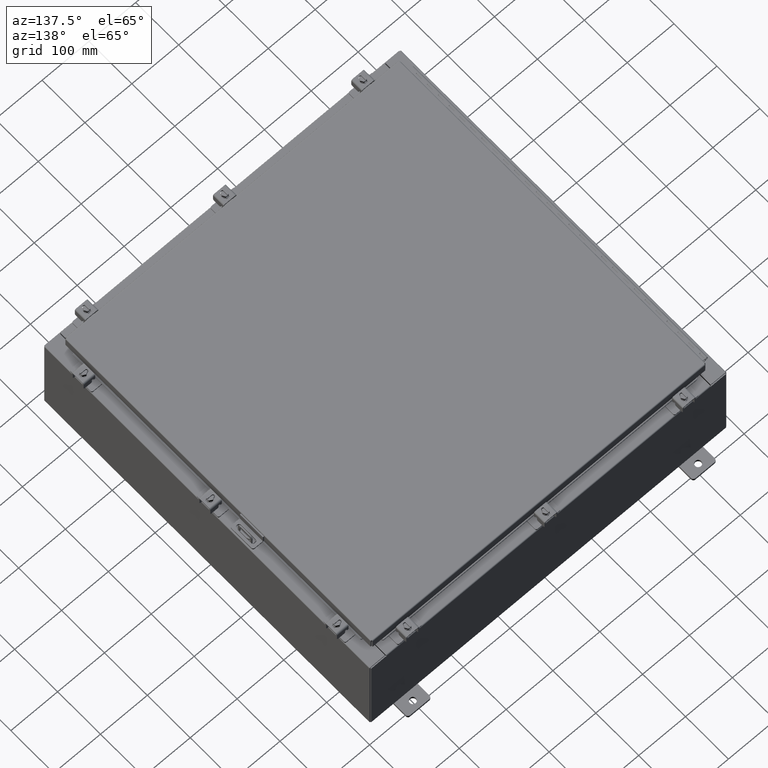
[diagram: clean part render]
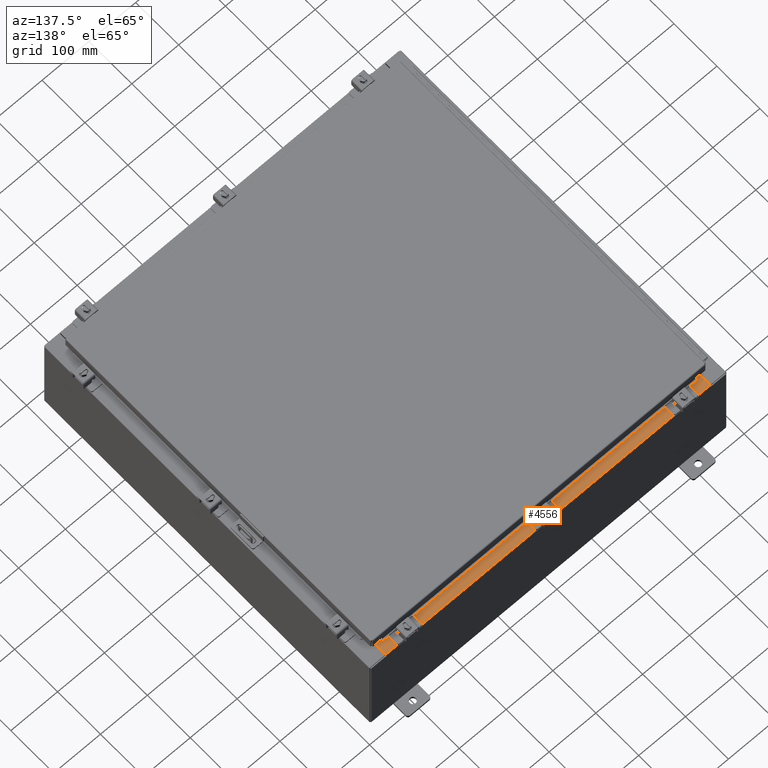
[diagram: same view with one face highlighted and labeled with its STEP entity id]
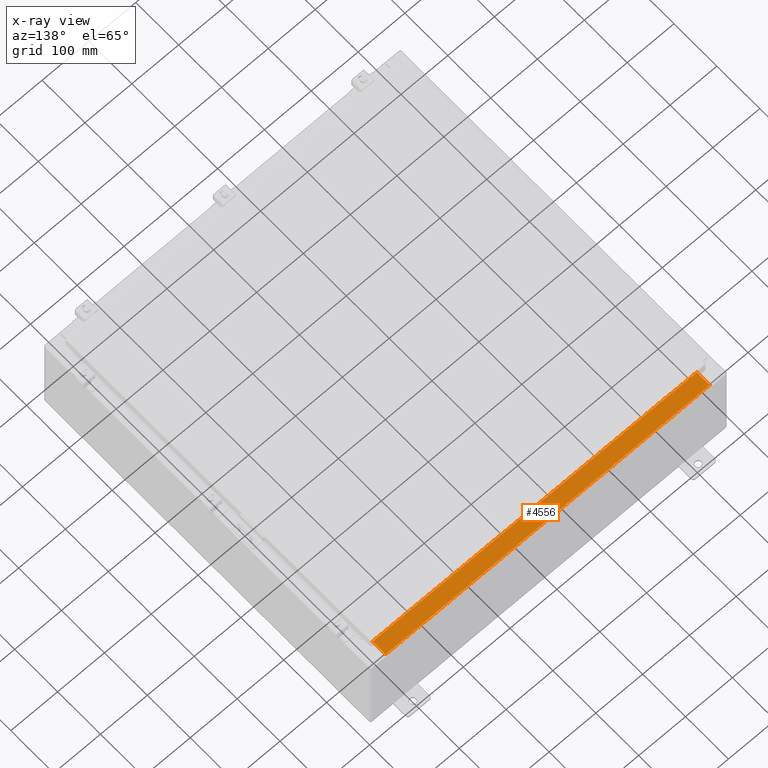
[diagram: x-ray of the same camera — body ghosted, the highlighted face saturated]
A machine part, auxiliary view. The second image highlights one B-rep face of the part: STEP entity #4556.
The next image is the same camera in x-ray: the body ghosted, the highlighted face saturated — about 0% of this face is hidden behind the body in this view.
In plain terms, the highlighted planar face has unit normal (0, 0, 1).
Its self-contained STEP definition (entity closure, byte-faithful):
#257 = ORIENTED_EDGE ( 'NONE', *, *, #32262, .F. ) ;
#357 = AXIS2_PLACEMENT_3D ( 'NONE', #20358, #26353, #8494 ) ;
#3191 = FACE_OUTER_BOUND ( 'NONE', #10824, .T. ) ;
#4556 = ADVANCED_FACE ( 'NONE', ( #3191 ), #29183, .T. ) ;
#7280 = VECTOR ( 'NONE', #36558, 39.37007874015748100 ) ;
#8494 = DIRECTION ( 'NONE',  ( 0.0000000000000000000, -1.000000000000000000, 3.566381192773190000E-015 ) ) ;
#10824 = EDGE_LOOP ( 'NONE', ( #20007, #14494, #257, #34217 ) ) ;
#11038 = VECTOR ( 'NONE', #27156, 39.37007874015748100 ) ;
#11841 = EDGE_CURVE ( 'NONE', #25751, #34651, #17695, .T. ) ;
#14494 = ORIENTED_EDGE ( 'NONE', *, *, #11841, .F. ) ;
#16767 = VECTOR ( 'NONE', #29624, 39.37007874015748100 ) ;
#17143 = VERTEX_POINT ( 'NONE', #17701 ) ;
#17695 = LINE ( 'NONE', #38474, #16767 ) ;
#17701 = CARTESIAN_POINT ( 'NONE',  ( -13.63719999999999800, -0.08770000000000000000, 4.000000000000000000 ) ) ;
#18947 = VERTEX_POINT ( 'NONE', #23845 ) ;
#19912 = LINE ( 'NONE', #24168, #11038 ) ;
#20007 = ORIENTED_EDGE ( 'NONE', *, *, #31231, .F. ) ;
#20266 = LINE ( 'NONE', #30087, #35158 ) ;
#20358 = CARTESIAN_POINT ( 'NONE',  ( 0.0000000000000000000, 1.425992975200418500E-014, 4.000000000000000000 ) ) ;
#21707 = CARTESIAN_POINT ( 'NONE',  ( -13.63719999999999800, -1.287299999999999200, 4.000000000000004400 ) ) ;
#21734 = CARTESIAN_POINT ( 'NONE',  ( -13.63719999999999800, -0.07469999999999973900, 4.000000000000000000 ) ) ;
#22222 = LINE ( 'NONE', #21734, #7280 ) ;
#23845 = CARTESIAN_POINT ( 'NONE',  ( 13.63720000000000400, -0.08769999999999965300, 4.000000000000000000 ) ) ;
#24168 = CARTESIAN_POINT ( 'NONE',  ( -1.756834753793995900E-018, -0.08770000000000000000, 4.000000000000000900 ) ) ;
#25751 = VERTEX_POINT ( 'NONE', #34607 ) ;
#26353 = DIRECTION ( 'NONE',  ( 0.0000000000000000000, 3.566381192773190000E-015, 1.000000000000000000 ) ) ;
#27156 = DIRECTION ( 'NONE',  ( -1.000000000000000000, 2.003232330437526000E-017, -7.144290108027600900E-032 ) ) ;
#29183 = PLANE ( 'NONE',  #357 ) ;
#29624 = DIRECTION ( 'NONE',  ( -1.000000000000000000, 0.0000000000000000000, 0.0000000000000000000 ) ) ;
#30087 = CARTESIAN_POINT ( 'NONE',  ( 13.63720000000000400, -1.300299999999999800, 4.000000000000004400 ) ) ;
#31231 = EDGE_CURVE ( 'NONE', #34651, #17143, #22222, .T. ) ;
#32262 = EDGE_CURVE ( 'NONE', #18947, #25751, #20266, .T. ) ;
#33110 = DIRECTION ( 'NONE',  ( -0.0000000000000000000, -1.000000000000000000, 3.566381192773190000E-015 ) ) ;
#34217 = ORIENTED_EDGE ( 'NONE', *, *, #38574, .T. ) ;
#34607 = CARTESIAN_POINT ( 'NONE',  ( 13.63720000000000400, -1.287299999999999900, 4.000000000000004400 ) ) ;
#34651 = VERTEX_POINT ( 'NONE', #21707 ) ;
#35158 = VECTOR ( 'NONE', #33110, 39.37007874015748100 ) ;
#36558 = DIRECTION ( 'NONE',  ( -0.0000000000000000000, 1.000000000000000000, -3.566381192773190000E-015 ) ) ;
#38474 = CARTESIAN_POINT ( 'NONE',  ( 13.63720000000000400, -1.287299999999999900, 4.000000000000003600 ) ) ;
#38574 = EDGE_CURVE ( 'NONE', #18947, #17143, #19912, .T. ) ;